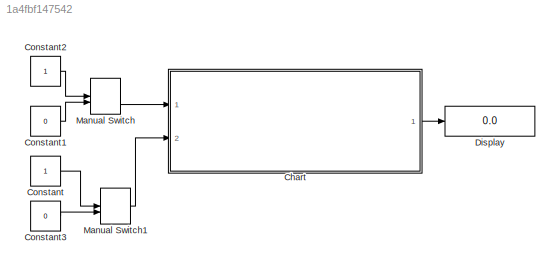
MODEL slx_1a4fbf147542
KIND model
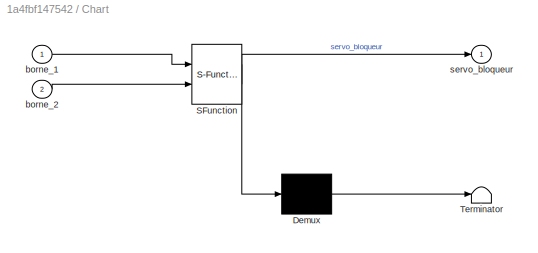
BLOCK [SubSystem] Chart
  ErrorFcn = Stateflow.Translate.translate
  FunctionWithSeparateData = off
  MaskHideContents = off
  MinAlgLoopOccurrences = off
  Opaque = off
  PermitHierarchicalResolution = ExplicitOnly
  Ports = [2, 1]
  PropExecContextOutsideSubsystem = off
  RTWSystemCode = Auto
  RequestExecContextInheritance = off
  SFBlockType = Chart
  TreatAsAtomicUnit = on
BLOCK [Demux] Chart/ Demux 
  Outputs = 1
  Ports = [1, 1]
BLOCK [S-Function] Chart/ SFunction 
  EnableBusSupport = on
  FunctionName = sf_sfun
  PortCounts = [2 2]
  Ports = [2, 2]
  Tag = Stateflow S-Function Simulation_servo_tangage_1_v2_corrige 1
BLOCK [Terminator] Chart/ Terminator 
BLOCK [Inport] Chart/borne_1
  IconDisplay = Port number
BLOCK [Inport] Chart/borne_2
  IconDisplay = Port number
  Port = 2
BLOCK [Outport] Chart/servo_bloqueur
  IconDisplay = Port number
BLOCK [Constant] Constant
BLOCK [Constant] Constant1
  Value = 0
BLOCK [Constant] Constant2
BLOCK [Constant] Constant3
  Value = 0
BLOCK [Display] Display
  Decimation = 1
  Lockdown = off
  Ports = [1]
BLOCK [ManualSwitch] Manual Switch
BLOCK [ManualSwitch] Manual Switch1
  CurrentSetting = 0
LINE Chart:1 -> Display:1
LINE Constant1:1 -> Manual Switch:2
LINE Constant2:1 -> Manual Switch:1
LINE Constant3:1 -> Manual Switch1:2
LINE Constant:1 -> Manual Switch1:1
LINE Manual Switch1:1 -> Chart:2
LINE Manual Switch:1 -> Chart:1
